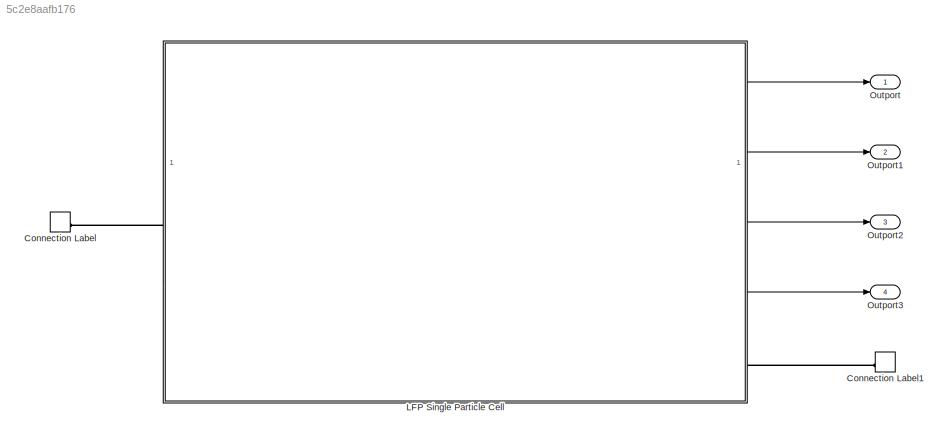
MODEL slx_5c2e8aafb176
KIND model
CONFIG AbsTol = auto
CONFIG EnableMultiTasking = off
CONFIG FixedStep = auto
CONFIG MaxStep = auto
CONFIG MinStep = auto
CONFIG RelTol = 1e-3
CONFIG SampleTimeConstraint = Unconstrained
CONFIG SolverName = VariableStepAuto
CONFIG StartTime = 0.0
CONFIG StopTime = 10.0
BLOCK [ConnectionLabel] Connection Label
  Label = p
BLOCK [ConnectionLabel] Connection Label1
  Label = n
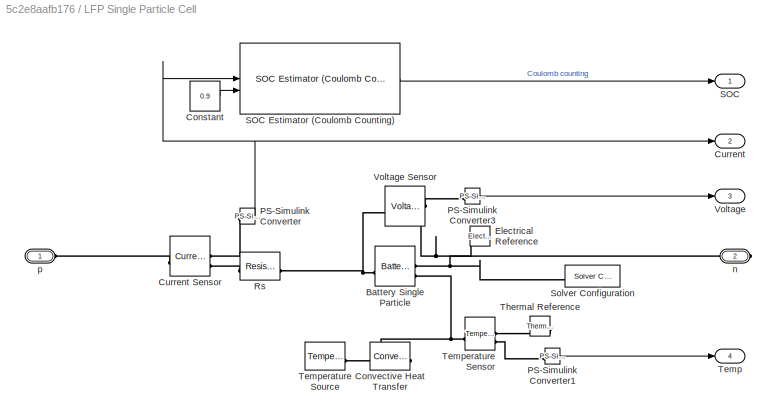
BLOCK [SubSystem] LFP Single Particle Cell
BLOCK [Reference] LFP Single Particle Cell/Battery Single Particle  REF=batt_lib/Cells/Electrochemical/Battery Single
Particle
  NameLocation = top
  SourceBlock = batt_lib/Cells/Electrochemical/Battery Single\nParticle
  SourceType = Battery Single\nParticle
BLOCK [Constant] LFP Single Particle Cell/Constant
  Value = 0.9
BLOCK [Reference] LFP Single Particle Cell/Convective Heat Transfer  REF=fl_lib/Thermal/Thermal Elements/Convective Heat
Transfer
  NameLocation = top
  SourceBlock = fl_lib/Thermal/Thermal Elements/Convective Heat\nTransfer
  SourceType = Convective Heat\nTransfer
BLOCK [Outport] LFP Single Particle Cell/Current
  Port = 2
BLOCK [Reference] LFP Single Particle Cell/Current Sensor  REF=fl_lib/Electrical/Electrical Sensors/Current Sensor
  SourceBlock = fl_lib/Electrical/Electrical Sensors/Current Sensor
  SourceType = Current Sensor
BLOCK [Reference] LFP Single Particle Cell/Electrical Reference  REF=fl_lib/Electrical/Electrical Elements/Electrical Reference
  NameLocation = top
  SourceBlock = fl_lib/Electrical/Electrical Elements/Electrical Reference
  SourceType = Electrical Reference
BLOCK [Reference] LFP Single Particle Cell/PS-Simulink Converter  REF=nesl_utility/PS-Simulink
Converter
  SourceBlock = nesl_utility/PS-Simulink\nConverter
  SourceType = PS-Simulink\nConverter
BLOCK [Reference] LFP Single Particle Cell/PS-Simulink Converter1  REF=nesl_utility/PS-Simulink
Converter
  SourceBlock = nesl_utility/PS-Simulink\nConverter
  SourceType = PS-Simulink\nConverter
BLOCK [Reference] LFP Single Particle Cell/PS-Simulink Converter3  REF=nesl_utility/PS-Simulink
Converter
  SourceBlock = nesl_utility/PS-Simulink\nConverter
  SourceType = PS-Simulink\nConverter
BLOCK [Reference] LFP Single Particle Cell/Rs  REF=fl_lib/Electrical/Electrical Elements/Resistor
  SourceBlock = fl_lib/Electrical/Electrical Elements/Resistor
  SourceType = Resistor
BLOCK [Outport] LFP Single Particle Cell/SOC
BLOCK [Reference] LFP Single Particle Cell/SOC Estimator (Coulomb Counting)  REF=BatteryEstimators/SOC Estimator
(Coulomb Counting)
  LibrarySourceBlock = batt_sl_lib/Estimators/SOC Estimator\n(Coulomb Counting)
  SourceBlock = BatteryEstimators/SOC Estimator\n(Coulomb Counting)
  SourceType = SOC Estimator (Coulomb Counting)
BLOCK [Reference] LFP Single Particle Cell/Solver Configuration  REF=nesl_utility/Solver
Configuration
  SourceBlock = nesl_utility/Solver\nConfiguration
  SourceType = Solver\nConfiguration
BLOCK [Outport] LFP Single Particle Cell/Temp
  Port = 4
BLOCK [Reference] LFP Single Particle Cell/Temperature Sensor  REF=fl_lib/Thermal/Thermal Sensors/Temperature Sensor
  SourceBlock = fl_lib/Thermal/Thermal Sensors/Temperature Sensor
  SourceType = Temperature Sensor
BLOCK [Reference] LFP Single Particle Cell/Temperature Source  REF=fl_lib/Thermal/Thermal Sources/Temperature Source
  SourceBlock = fl_lib/Thermal/Thermal Sources/Temperature Source
  SourceType = Temperature Source
BLOCK [Reference] LFP Single Particle Cell/Thermal Reference  REF=fl_lib/Thermal/Thermal Elements/Thermal Reference
  NameLocation = top
  SourceBlock = fl_lib/Thermal/Thermal Elements/Thermal Reference
  SourceType = Thermal Reference
BLOCK [Outport] LFP Single Particle Cell/Voltage
  Port = 3
BLOCK [Reference] LFP Single Particle Cell/Voltage Sensor  REF=fl_lib/Electrical/Electrical Sensors/Voltage Sensor
  NameLocation = top
  SourceBlock = fl_lib/Electrical/Electrical Sensors/Voltage Sensor
  SourceType = Voltage Sensor
BLOCK [PMIOPort] LFP Single Particle Cell/n
  Port = 2
  Side = Right
BLOCK [PMIOPort] LFP Single Particle Cell/p
  Side = Left
BLOCK [Outport] Outport
BLOCK [Outport] Outport1
  Port = 2
BLOCK [Outport] Outport2
  Port = 3
BLOCK [Outport] Outport3
  Port = 4
LINE LFP Single Particle Cell/Constant:1 -> LFP Single Particle Cell/SOC Estimator (Coulomb Counting):2
LINE LFP Single Particle Cell/PS-Simulink Converter1:1 -> LFP Single Particle Cell/Temp:1
LINE LFP Single Particle Cell/PS-Simulink Converter3:1 -> LFP Single Particle Cell/Voltage:1
NET LFP Single Particle Cell/PS-Simulink Converter:1 -> LFP Single Particle Cell/Current:1, LFP Single Particle Cell/SOC Estimator (Coulomb Counting):1
LINE LFP Single Particle Cell/SOC Estimator (Coulomb Counting):1 -> LFP Single Particle Cell/SOC:1
LINE LFP Single Particle Cell:1 -> Outport:1
LINE LFP Single Particle Cell:2 -> Outport1:1
LINE LFP Single Particle Cell:3 -> Outport2:1
LINE LFP Single Particle Cell:4 -> Outport3:1
PLINE Connection Label1:LConn1 -- LFP Single Particle Cell:RConn1
PLINE Connection Label:LConn1 -- LFP Single Particle Cell:LConn1
PNET net1: LFP Single Particle Cell/Battery Single Particle:LConn1 -- LFP Single Particle Cell/Rs:RConn1 -- LFP Single Particle Cell/Voltage Sensor:LConn1
PNET net2: LFP Single Particle Cell/Battery Single Particle:RConn1 -- LFP Single Particle Cell/Electrical Reference:LConn1 -- LFP Single Particle Cell/Solver Configuration:RConn1 -- LFP Single Particle Cell/Voltage Sensor:RConn2 -- LFP Single Particle Cell/n:RConn1
PNET net3: LFP Single Particle Cell/Battery Single Particle:RConn2 -- LFP Single Particle Cell/Convective Heat Transfer:LConn1 -- LFP Single Particle Cell/Temperature Sensor:LConn1
PLINE LFP Single Particle Cell/Convective Heat Transfer:RConn1 -- LFP Single Particle Cell/Temperature Source:LConn1
PLINE LFP Single Particle Cell/Current Sensor:LConn1 -- LFP Single Particle Cell/p:RConn1
PLINE LFP Single Particle Cell/Current Sensor:RConn1 -- LFP Single Particle Cell/PS-Simulink Converter:LConn1
PLINE LFP Single Particle Cell/Current Sensor:RConn2 -- LFP Single Particle Cell/Rs:LConn1
PLINE LFP Single Particle Cell/PS-Simulink Converter1:LConn1 -- LFP Single Particle Cell/Temperature Sensor:RConn2
PLINE LFP Single Particle Cell/PS-Simulink Converter3:LConn1 -- LFP Single Particle Cell/Voltage Sensor:RConn1
PLINE LFP Single Particle Cell/Temperature Sensor:RConn1 -- LFP Single Particle Cell/Thermal Reference:LConn1
note: NET lines group one-source signal fan-out (src -> all destinations, sorted); 1:1 wires keep LINE; PNET lines group multi-terminal physical nets as a canonical sorted terminal list (undirected conserving connections); 2-terminal nets keep the pairwise PLINE form
